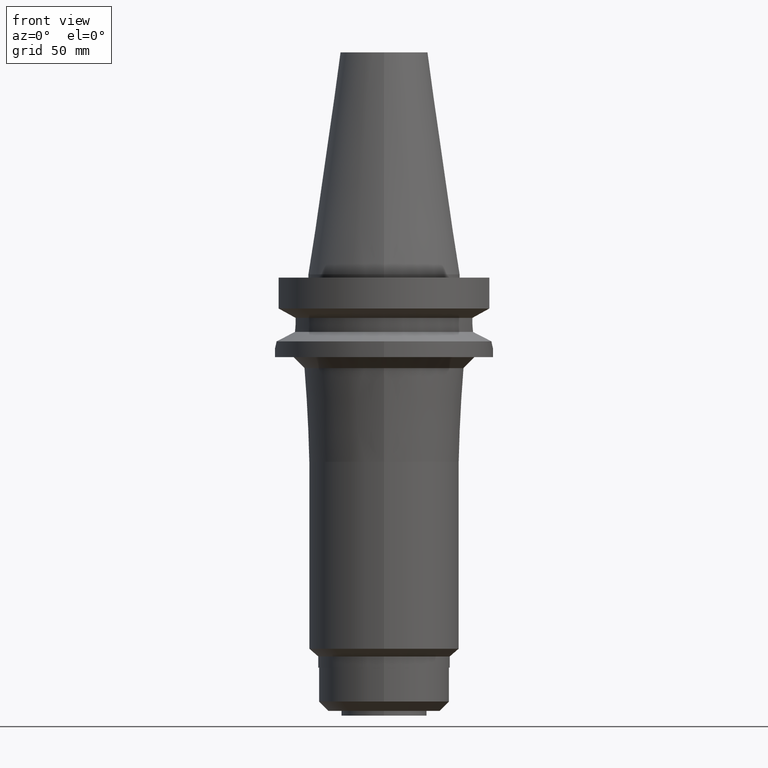
[diagram: clean part render]
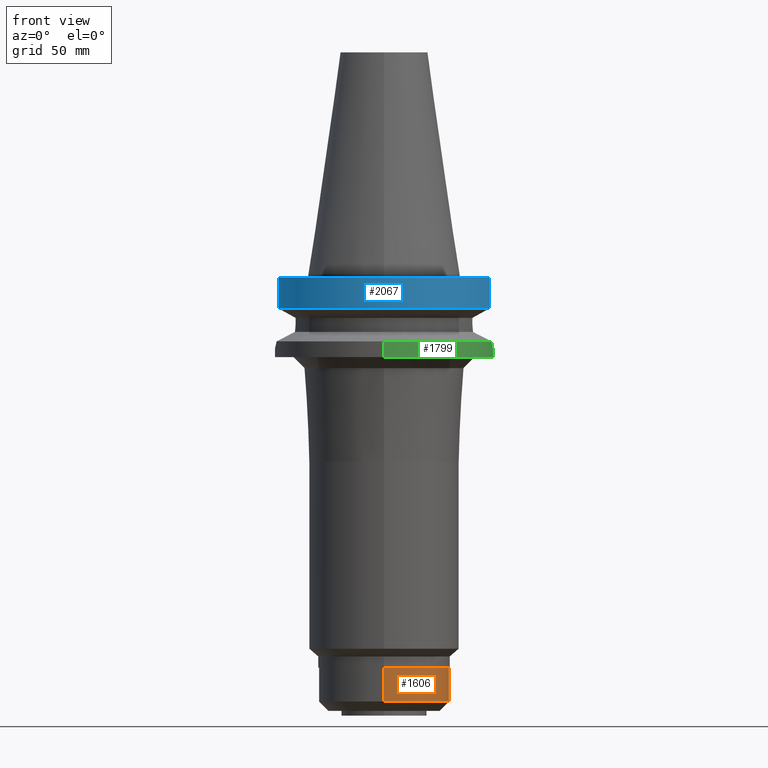
[diagram: same view with three faces highlighted in distinct colors, each labeled with its STEP entity id]
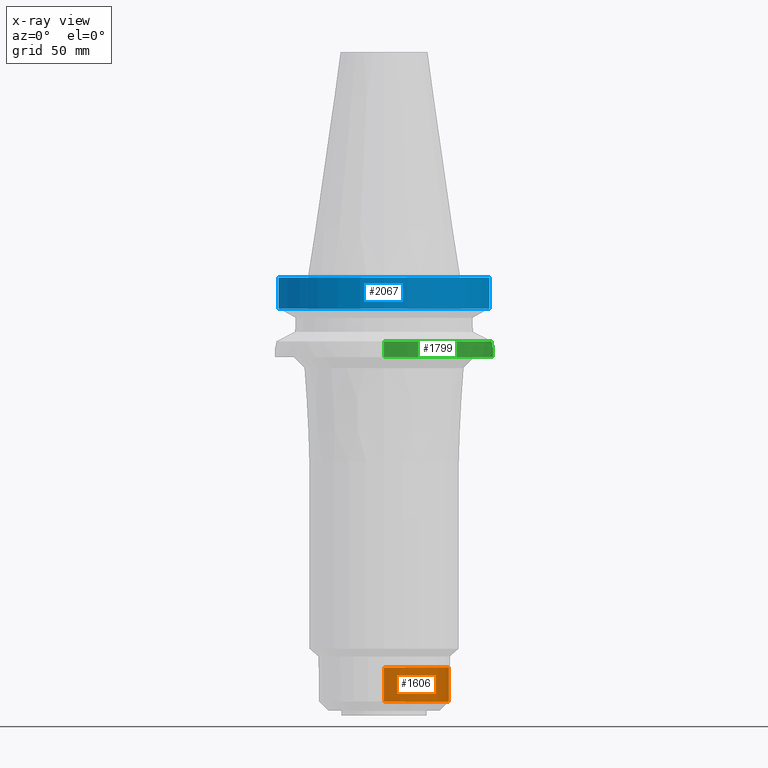
[diagram: x-ray of the same camera — body ghosted, the three highlighted faces saturated]
A machine part, front view with three faces highlighted in distinct colors.
The next image is the same camera in x-ray (body ghosted, the three faces saturated) — at least one of them is partly hidden behind the body in this view.
Their STEP definitions:

[orange] entity #1606 — the highlighted cylindrical surface (partial cylindrical patch) has radius 30 mm, axis along (0, 0, -1).
#285=CARTESIAN_POINT('',(0.E0,-1.200766186564E-14,-1.959E2));
#286=DIRECTION('',(0.E0,0.E0,1.E0));
#287=DIRECTION('',(0.E0,-1.E0,0.E0));
#288=AXIS2_PLACEMENT_3D('',#285,#286,#287);
#308=DIRECTION('',(0.E0,0.E0,-1.E0));
#309=VECTOR('',#308,1.55E1);
#310=CARTESIAN_POINT('',(0.E0,-3.E1,-1.804E2));
#311=LINE('',#310,#309);
#315=DIRECTION('',(0.E0,0.E0,-1.E0));
#316=VECTOR('',#315,1.55E1);
#317=CARTESIAN_POINT('',(0.E0,3.E1,-1.804E2));
#318=LINE('',#317,#316);
#346=CARTESIAN_POINT('',(0.E0,2.657606018830E-14,-1.804E2));
#347=DIRECTION('',(0.E0,0.E0,-1.E0));
#348=DIRECTION('',(0.E0,1.E0,0.E0));
#349=AXIS2_PLACEMENT_3D('',#346,#347,#348);
#1176=CARTESIAN_POINT('',(0.E0,3.E1,-1.959E2));
#1177=VERTEX_POINT('',#1176);
#1178=CARTESIAN_POINT('',(0.E0,-3.E1,-1.959E2));
#1179=VERTEX_POINT('',#1178);
#1180=CARTESIAN_POINT('',(0.E0,3.E1,-1.804E2));
#1181=VERTEX_POINT('',#1180);
#1182=CARTESIAN_POINT('',(0.E0,-3.E1,-1.804E2));
#1183=VERTEX_POINT('',#1182);
#1594=CARTESIAN_POINT('',(0.E0,2.657606018830E-14,1.1701E2));
#1595=DIRECTION('',(0.E0,0.E0,-1.E0));
#1596=DIRECTION('',(0.E0,-1.E0,0.E0));
#1597=AXIS2_PLACEMENT_3D('',#1594,#1595,#1596);
#1598=CYLINDRICAL_SURFACE('',#1597,3.E1);
#1599=ORIENTED_EDGE('',*,*,#1584,.T.);
#1600=ORIENTED_EDGE('',*,*,#1561,.F.);
#1601=ORIENTED_EDGE('',*,*,#1588,.F.);
#1603=ORIENTED_EDGE('',*,*,#1602,.F.);
#1604=EDGE_LOOP('',(#1599,#1600,#1601,#1603));
#1605=FACE_OUTER_BOUND('',#1604,.F.);
#289=CIRCLE('',#288,3.E1);
#350=CIRCLE('',#349,3.E1);
#1561=EDGE_CURVE('',#1179,#1177,#289,.T.);
#1584=EDGE_CURVE('',#1181,#1177,#318,.T.);
#1588=EDGE_CURVE('',#1183,#1179,#311,.T.);
#1602=EDGE_CURVE('',#1181,#1183,#350,.T.);
#1606=ADVANCED_FACE('',(#1605),#1598,.T.);

[blue] entity #2067 — the highlighted cylindrical surface (partial cylindrical patch) has radius 50 mm, axis along (0, 0, -1).
#827=CARTESIAN_POINT('',(0.E0,2.657606018830E-14,-1.5E0));
#828=DIRECTION('',(0.E0,0.E0,-1.E0));
#829=DIRECTION('',(9.664114030784E-1,-2.57E-1,0.E0));
#830=AXIS2_PLACEMENT_3D('',#827,#828,#829);
#835=CARTESIAN_POINT('',(0.E0,2.657606018830E-14,-1.5E0));
#836=DIRECTION('',(0.E0,0.E0,-1.E0));
#837=DIRECTION('',(0.E0,-1.E0,0.E0));
#838=AXIS2_PLACEMENT_3D('',#835,#836,#837);
#940=CARTESIAN_POINT('',(0.E0,1.006319759054E-14,-1.566269223573E1));
#941=DIRECTION('',(0.E0,0.E0,1.E0));
#942=DIRECTION('',(-9.664114030784E-1,-2.57E-1,0.E0));
#943=AXIS2_PLACEMENT_3D('',#940,#941,#942);
#948=CARTESIAN_POINT('',(0.E0,1.006319759054E-14,-1.566269223573E1));
#949=DIRECTION('',(0.E0,0.E0,1.E0));
#950=DIRECTION('',(0.E0,-1.E0,0.E0));
#951=AXIS2_PLACEMENT_3D('',#948,#949,#950);
#972=DIRECTION('',(-7.242826062941E-8,2.723558434546E-7,1.E0));
#973=VECTOR('',#972,1.416265768251E1);
#974=CARTESIAN_POINT('',(-4.832056912814E1,-1.285000385728E1,
-1.566265768251E1));
#975=LINE('',#974,#973);
#979=DIRECTION('',(-7.245256712559E-8,-2.724472421616E-7,-1.E0));
#980=VECTOR('',#979,1.416265767091E1);
#981=CARTESIAN_POINT('',(4.832057015392E1,-1.285E1,-1.5E0));
#982=LINE('',#981,#980);
#1261=CARTESIAN_POINT('',(-4.832057015392E1,-1.285E1,-1.5E0));
#1262=VERTEX_POINT('',#1261);
#1263=CARTESIAN_POINT('',(-4.832056912814E1,-1.285000385728E1,
-1.566265768251E1));
#1264=VERTEX_POINT('',#1263);
#1277=CARTESIAN_POINT('',(4.832057015392E1,-1.285E1,-1.5E0));
#1278=VERTEX_POINT('',#1277);
#1279=CARTESIAN_POINT('',(1.065814103640E-14,-5.E1,-1.5E0));
#1280=VERTEX_POINT('',#1279);
#1294=CARTESIAN_POINT('',(0.E0,-5.E1,-1.566269223573E1));
#1295=CARTESIAN_POINT('',(4.832057015392E1,-1.285E1,-1.566269223573E1));
#1296=VERTEX_POINT('',#1294);
#1297=VERTEX_POINT('',#1295);
#2053=CARTESIAN_POINT('',(0.E0,2.657606018830E-14,1.1701E2));
#2054=DIRECTION('',(0.E0,0.E0,-1.E0));
#2055=DIRECTION('',(0.E0,-1.E0,0.E0));
#2056=AXIS2_PLACEMENT_3D('',#2053,#2054,#2055);
#2057=CYLINDRICAL_SURFACE('',#2056,5.E1);
#2058=ORIENTED_EDGE('',*,*,#2010,.T.);
#2059=ORIENTED_EDGE('',*,*,#1972,.F.);
#2060=ORIENTED_EDGE('',*,*,#1970,.F.);
#2062=ORIENTED_EDGE('',*,*,#2061,.T.);
#2063=ORIENTED_EDGE('',*,*,#2044,.F.);
#2064=ORIENTED_EDGE('',*,*,#2042,.F.);
#2065=EDGE_LOOP('',(#2058,#2059,#2060,#2062,#2063,#2064));
#2066=FACE_OUTER_BOUND('',#2065,.F.);
#831=CIRCLE('',#830,5.E1);
#839=CIRCLE('',#838,5.E1);
#944=CIRCLE('',#943,5.E1);
#952=CIRCLE('',#951,5.E1);
#1970=EDGE_CURVE('',#1278,#1280,#831,.T.);
#1972=EDGE_CURVE('',#1280,#1262,#839,.T.);
#2010=EDGE_CURVE('',#1264,#1262,#975,.T.);
#2042=EDGE_CURVE('',#1264,#1296,#944,.T.);
#2044=EDGE_CURVE('',#1296,#1297,#952,.T.);
#2061=EDGE_CURVE('',#1278,#1297,#982,.T.);
#2067=ADVANCED_FACE('',(#2066),#2057,.T.);

[green] entity #1799 — the highlighted cylindrical surface (partial cylindrical patch) has radius 50 mm, axis along (0, 0, -1).
#488=CARTESIAN_POINT('',(0.E0,2.657606018830E-14,-3.8E1));
#489=DIRECTION('',(0.E0,0.E0,1.E0));
#490=DIRECTION('',(0.E0,-1.E0,0.E0));
#491=AXIS2_PLACEMENT_3D('',#488,#489,#490);
#520=CARTESIAN_POINT('',(4.926250064874E1,-8.556052234130E0,-3.073730776427E1));
#521=CARTESIAN_POINT('',(4.936648665730E1,-7.957340272815E0,-3.127161947515E1));
#522=CARTESIAN_POINT('',(4.956426094988E1,-6.687958210927E0,-3.220404863301E1));
#523=CARTESIAN_POINT('',(4.980474395051E1,-4.596534836254E0,-3.322666129295E1));
#524=CARTESIAN_POINT('',(4.996455940568E1,-2.307543939226E0,-3.386326759648E1));
#525=CARTESIAN_POINT('',(5.E1,-7.763867824107E-1,-3.4E1));
#526=CARTESIAN_POINT('',(5.E1,1.788045559095E-14,-3.4E1));
#531=CARTESIAN_POINT('',(5.E1,1.788045559095E-14,-3.4E1));
#532=CARTESIAN_POINT('',(5.E1,7.765078293484E-1,-3.4E1));
#533=CARTESIAN_POINT('',(4.996454815888E1,2.307842684334E0,-3.386322451467E1));
#534=CARTESIAN_POINT('',(4.980470976350E1,4.596900464962E0,-3.322652220688E1));
#535=CARTESIAN_POINT('',(4.956422456200E1,6.688208587189E0,-3.220388372693E1));
#536=CARTESIAN_POINT('',(4.936647109286E1,7.957429886964E0,-3.127153950031E1));
#537=CARTESIAN_POINT('',(4.926250064874E1,8.556052234130E0,-3.073730776427E1));
#542=DIRECTION('',(0.E0,2.152361642122E-14,-1.E0));
#543=VECTOR('',#542,7.262692235730E0);
#544=CARTESIAN_POINT('',(0.E0,5.E1,-3.073730776427E1));
#545=LINE('',#544,#543);
#599=CARTESIAN_POINT('',(0.E0,0.E0,-3.073730776427E1));
#600=DIRECTION('',(0.E0,0.E0,-1.E0));
#601=DIRECTION('',(9.852500129747E-1,-1.711210446826E-1,0.E0));
#602=AXIS2_PLACEMENT_3D('',#599,#600,#601);
#643=DIRECTION('',(0.E0,-2.250196262218E-14,-1.E0));
#644=VECTOR('',#643,7.262692235730E0);
#645=CARTESIAN_POINT('',(0.E0,-5.E1,-3.073730776427E1));
#646=LINE('',#645,#644);
#668=CARTESIAN_POINT('',(0.E0,0.E0,-3.073730776427E1));
#669=DIRECTION('',(0.E0,0.E0,-1.E0));
#670=DIRECTION('',(0.E0,1.E0,0.E0));
#671=AXIS2_PLACEMENT_3D('',#668,#669,#670);
#1208=CARTESIAN_POINT('',(0.E0,-5.E1,-3.8E1));
#1209=CARTESIAN_POINT('',(0.E0,5.E1,-3.8E1));
#1210=VERTEX_POINT('',#1208);
#1211=VERTEX_POINT('',#1209);
#1212=VERTEX_POINT('',#531);
#1213=VERTEX_POINT('',#537);
#1214=VERTEX_POINT('',#520);
#1215=CARTESIAN_POINT('',(0.E0,5.E1,-3.073730776427E1));
#1216=VERTEX_POINT('',#1215);
#1217=CARTESIAN_POINT('',(0.E0,-5.E1,-3.073730776427E1));
#1218=VERTEX_POINT('',#1217);
#1779=CARTESIAN_POINT('',(0.E0,2.657606018830E-14,1.1701E2));
#1780=DIRECTION('',(0.E0,0.E0,-1.E0));
#1781=DIRECTION('',(0.E0,-1.E0,0.E0));
#1782=AXIS2_PLACEMENT_3D('',#1779,#1780,#1781);
#1783=CYLINDRICAL_SURFACE('',#1782,5.E1);
#1785=ORIENTED_EDGE('',*,*,#1784,.T.);
#1787=ORIENTED_EDGE('',*,*,#1786,.T.);
#1789=ORIENTED_EDGE('',*,*,#1788,.F.);
#1791=ORIENTED_EDGE('',*,*,#1790,.T.);
#1792=ORIENTED_EDGE('',*,*,#1768,.F.);
#1794=ORIENTED_EDGE('',*,*,#1793,.F.);
#1796=ORIENTED_EDGE('',*,*,#1795,.F.);
#1797=EDGE_LOOP('',(#1785,#1787,#1789,#1791,#1792,#1794,#1796));
#1798=FACE_OUTER_BOUND('',#1797,.F.);
#492=CIRCLE('',#491,5.E1);
#527=B_SPLINE_CURVE_WITH_KNOTS('',3,(#520,#521,#522,#523,#524,#525,#526),
.UNSPECIFIED.,.F.,.F.,(4,1,1,1,4),(0.E0,2.5E-1,5.E-1,7.5E-1,1.E0),
.UNSPECIFIED.);
#538=B_SPLINE_CURVE_WITH_KNOTS('',3,(#531,#532,#533,#534,#535,#536,#537),
.UNSPECIFIED.,.F.,.F.,(4,1,1,1,4),(0.E0,2.5E-1,5.E-1,7.5E-1,1.E0),
.UNSPECIFIED.);
#603=CIRCLE('',#602,5.E1);
#672=CIRCLE('',#671,5.E1);
#1768=EDGE_CURVE('',#1210,#1211,#492,.T.);
#1784=EDGE_CURVE('',#1214,#1212,#527,.T.);
#1786=EDGE_CURVE('',#1212,#1213,#538,.T.);
#1788=EDGE_CURVE('',#1216,#1213,#672,.T.);
#1790=EDGE_CURVE('',#1216,#1211,#545,.T.);
#1793=EDGE_CURVE('',#1218,#1210,#646,.T.);
#1795=EDGE_CURVE('',#1214,#1218,#603,.T.);
#1799=ADVANCED_FACE('',(#1798),#1783,.T.);